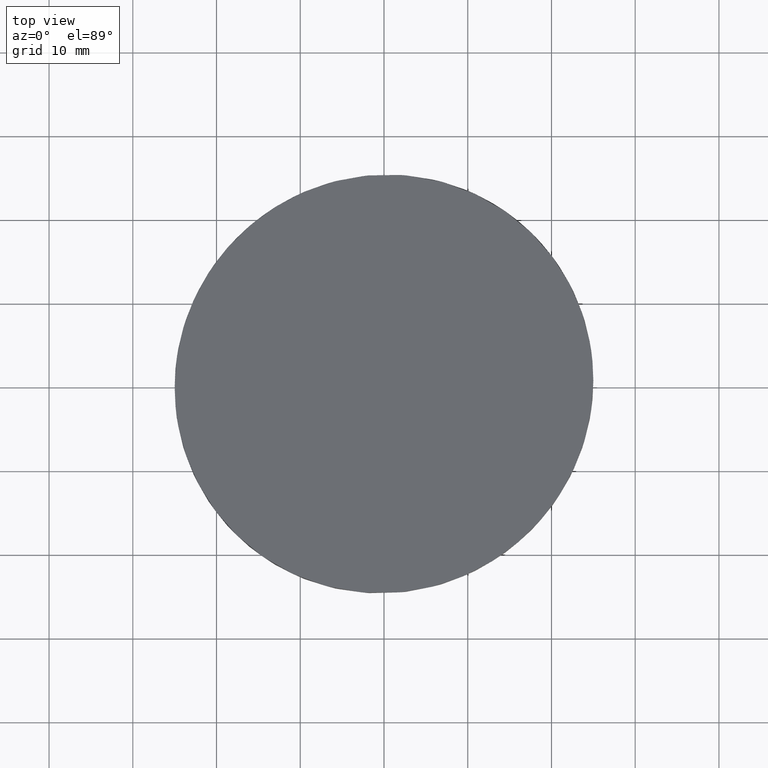
[diagram: clean part render]
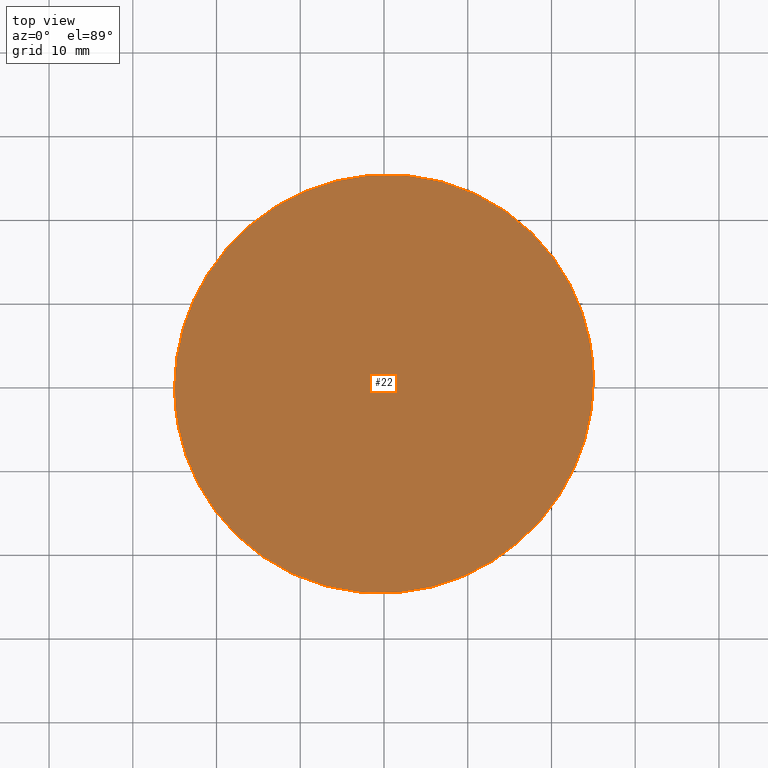
[diagram: same view with one face highlighted and labeled with its STEP entity id]
A machine part, top view. The second image highlights one B-rep face of the part: STEP entity #22.
In plain terms, the highlighted planar face has unit normal (0.7071, 0, -0.7071).
Its self-contained STEP definition (entity closure, byte-faithful):
#1 = VERTEX_POINT ( 'NONE', #118 ) ;
#5 = CARTESIAN_POINT ( 'NONE',  ( -25.00000000000000000, 0.000000000000000000, 7.366540713605735036 ) ) ;
#7 = CARTESIAN_POINT ( 'NONE',  ( -38.23769816666228394, -30.50000000000000711, -5.871157453056501829 ) ) ;
#12 = AXIS2_PLACEMENT_3D ( 'NONE', #7, #104, #18 ) ;
#14 = EDGE_CURVE ( 'NONE', #1, #101, #34, .T. ) ;
#18 = DIRECTION ( 'NONE',  ( -0.7071067811865489050, 0.000000000000000000, -0.7071067811865462405 ) ) ;
#22 = ADVANCED_FACE ( 'NONE', ( #107 ), #135, .F. ) ;
#29 = EDGE_CURVE ( 'NONE', #101, #1, #92, .T. ) ;
#34 =( BOUNDED_CURVE ( )  B_SPLINE_CURVE ( 3, ( #144, #46, #76, #132 ),
 .UNSPECIFIED., .F., .F. ) 
 B_SPLINE_CURVE_WITH_KNOTS ( ( 4, 4 ),
 ( 0.000000000000000000, 3.141592653589793116 ),
 .UNSPECIFIED. ) 
 CURVE ( )  GEOMETRIC_REPRESENTATION_ITEM ( )  RATIONAL_B_SPLINE_CURVE ( ( 1.000000000000000000, 0.3333333333333333703, 0.3333333333333333703, 1.000000000000000000 ) ) 
 REPRESENTATION_ITEM ( '' )  );
#46 = CARTESIAN_POINT ( 'NONE',  ( -25.00000000000001066, 50.00000000000000000, 7.366540713605732371 ) ) ;
#63 = ORIENTED_EDGE ( 'NONE', *, *, #29, .F. ) ;
#67 = CARTESIAN_POINT ( 'NONE',  ( 25.00000000000001066, -50.00000000000000000, 57.36654071360556628 ) ) ;
#76 = CARTESIAN_POINT ( 'NONE',  ( 25.00000000000000000, 50.00000000000000000, 57.36654071360555207 ) ) ;
#89 = CARTESIAN_POINT ( 'NONE',  ( -25.00000000000001066, -50.00000000000000000, 7.366540713605732371 ) ) ;
#92 =( BOUNDED_CURVE ( )  B_SPLINE_CURVE ( 3, ( #154, #67, #89, #5 ),
 .UNSPECIFIED., .F., .F. ) 
 B_SPLINE_CURVE_WITH_KNOTS ( ( 4, 4 ),
 ( 3.141592653589793116, 6.283185307179586232 ),
 .UNSPECIFIED. ) 
 CURVE ( )  GEOMETRIC_REPRESENTATION_ITEM ( )  RATIONAL_B_SPLINE_CURVE ( ( 1.000000000000000000, 0.3333333333333333703, 0.3333333333333333703, 1.000000000000000000 ) ) 
 REPRESENTATION_ITEM ( '' )  );
#101 = VERTEX_POINT ( 'NONE', #109 ) ;
#104 = DIRECTION ( 'NONE',  ( 0.7071067811865462405, 0.000000000000000000, -0.7071067811865489050 ) ) ;
#107 = FACE_OUTER_BOUND ( 'NONE', #168, .T. ) ;
#109 = CARTESIAN_POINT ( 'NONE',  ( 25.00000000000000000, 3.061616997868382254E-15, 57.36654071360555918 ) ) ;
#118 = CARTESIAN_POINT ( 'NONE',  ( -25.00000000000000000, 0.000000000000000000, 7.366540713605735036 ) ) ;
#132 = CARTESIAN_POINT ( 'NONE',  ( 25.00000000000000000, 3.061616997868382254E-15, 57.36654071360555918 ) ) ;
#135 = PLANE ( 'NONE',  #12 ) ;
#144 = CARTESIAN_POINT ( 'NONE',  ( -25.00000000000000000, 0.000000000000000000, 7.366540713605735036 ) ) ;
#154 = CARTESIAN_POINT ( 'NONE',  ( 25.00000000000000000, 3.061616997868382254E-15, 57.36654071360555918 ) ) ;
#165 = ORIENTED_EDGE ( 'NONE', *, *, #14, .F. ) ;
#168 = EDGE_LOOP ( 'NONE', ( #165, #63 ) ) ;